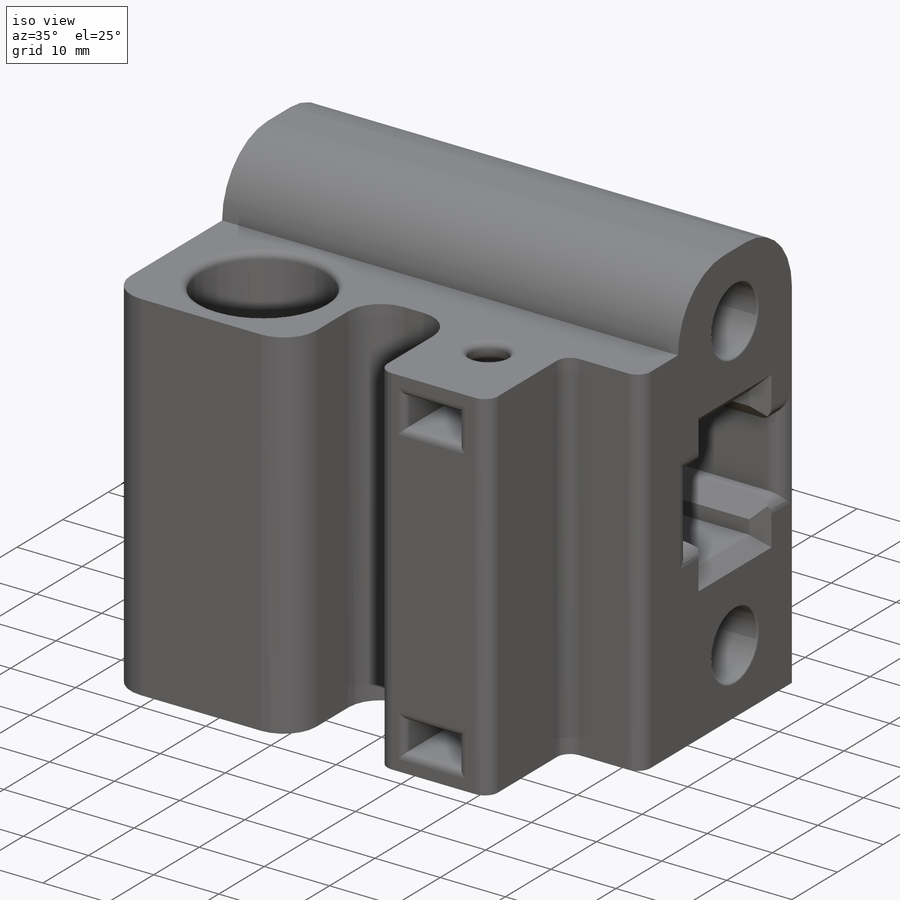
[diagram: iso view]
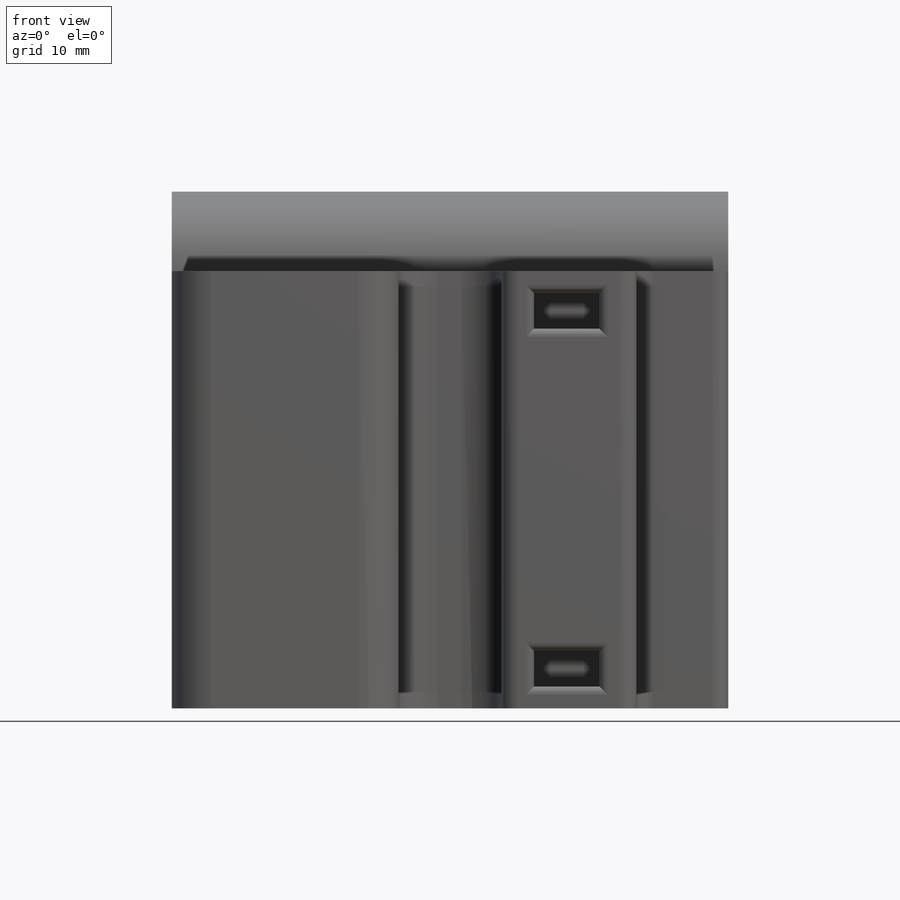
[diagram: front view]
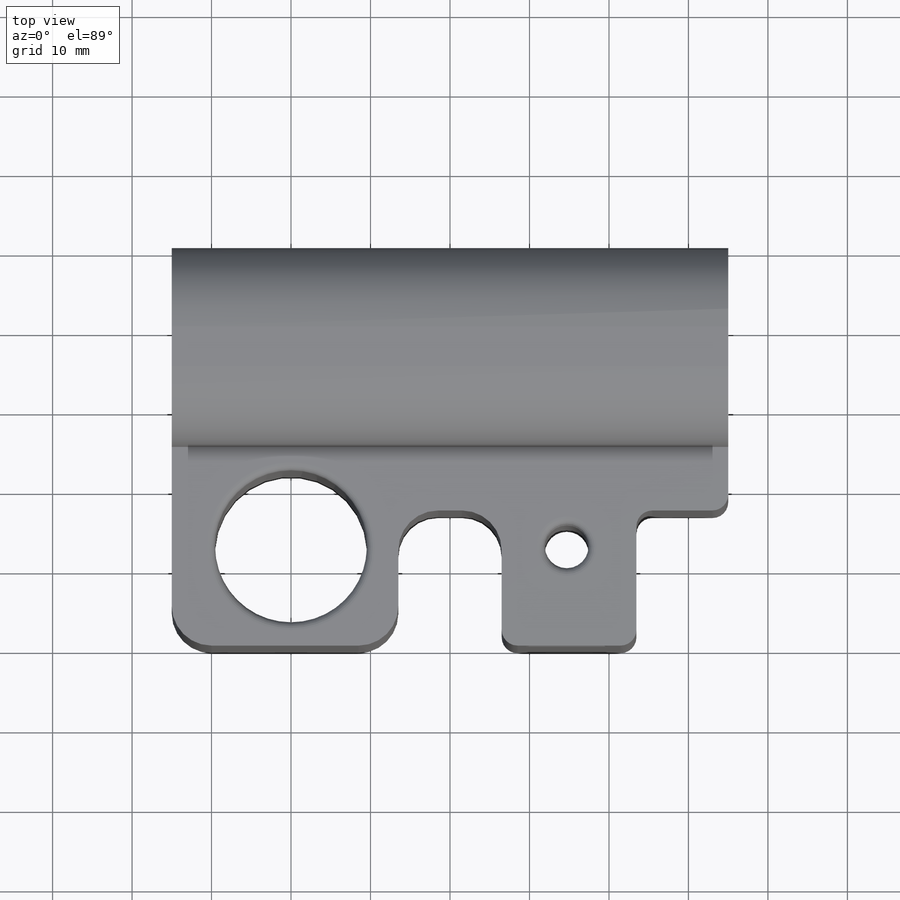
[diagram: top view]
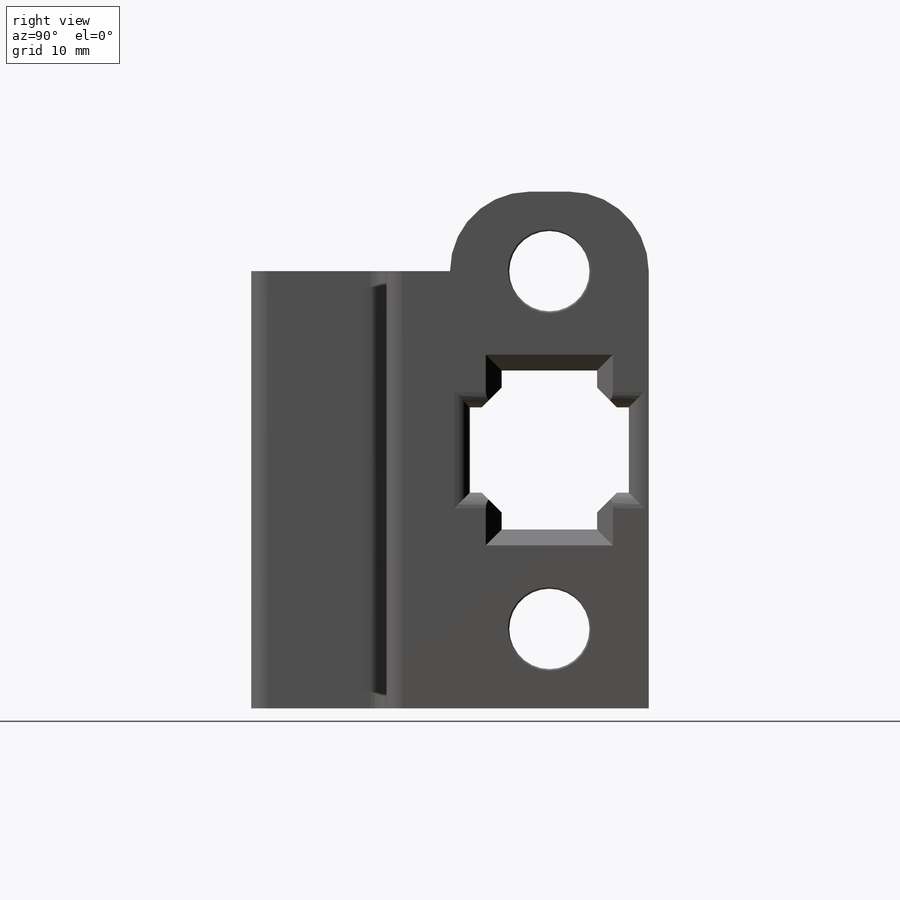
[diagram: right view]
SOLIDWORKS PART (.sldprt)
format: sldprt  version: not decoded by parser v0  size: 650,240 bytes
history: native  units: mm
features: fillet x12, sketch x11, cut_extrude x10, chamfer x2, material x1, extrude x1 (+13 scaffold rows collapsed)
feature tree (50):
  scaffold x13  (default folders/planes/origin — collapsed)
  material  "Material <not specified>"
  sketch  "Sketch1"  dims[D1=65.0mm D2=70.0mm]
  extrude  "Boss-Extrude1"  Depth=50mm
  sketch  "Sketch2"
  cut_extrude  "Cut-Extrude1"  Depth=10mm
  sketch  "Sketch3"  dims[D1=5.5mm D2=19.1mm D3=20.32mm D4=34.68mm D5=12.5mm]
  cut_extrude  "Cut-Extrude2"  [1 undecoded]
  sketch  "Sketch4"  dims[c1.D1=10.1mm c1.D2=10.1mm c1.D5=10.1mm c1.D3=45.0mm c1.D4=22.5mm c2.D5=10.0mm]
  cut_extrude  "Cut-Extrude3"  [1 undecoded]
  sketch  "Sketch5"  dims[D1=20.0mm D2=12.0mm]
  cut_extrude  "Cut-Extrude4"  [1 undecoded]
  sketch  "Sketch6"  dims[D1=25.0mm D2=30.0mm D3=20.0mm]
  cut_extrude  "Cut-Extrude5"  Depth=2.5mm
  fillet  "Fillet1"  Radius=10mm
  chamfer  "Chamfer1"  Distance=2mm Angle=45deg
  fillet  "Fillet3"  Radius=0.25mm
  fillet  "Fillet4"  Radius=1mm
  sketch  "Sketch8"  dims[D1=20.32mm D2=5.0mm D3=8.25mm D4=4.5mm]
  cut_extrude  "Cut-Extrude6"  Depth=17.5mm
  sketch  "Sketch9"
  cut_extrude  "Cut-Extrude7"  Depth=1mm
  sketch  "Sketch12"  dims[D2=5.0mm D1=17.0mm D3=13.0mm]
  cut_extrude  "Cut-Extrude8"  [1 undecoded]
  sketch  "Sketch13"
  cut_extrude  "Cut-Extrude10"  Depth=17mm
  fillet  "Fillet5"  Radius=2mm
  fillet  "Fillet6"  Radius=5mm
  sketch  "Sketch14"
  cut_extrude  "Cut-Extrude11"  [1 undecoded]
  chamfer  "Chamfer2"  Distance=2.5mm Angle=45deg
  fillet  "Fillet8"  Radius=2mm
  fillet  "Fillet9"  Radius=2mm
  fillet  "Fillet10"  Radius=1mm
  fillet  "Fillet11"  Radius=1mm
  fillet  "Fillet12"  Radius=1mm
  fillet  "Fillet13"  Radius=1mm
  fillet  "Fillet14"  Radius=1mm
decode coverage: 27 of 36 modeling features carry decoded parameters
note: 5 parameter values undecoded
summary: no parameter record found for 5 features
note: suppression state not decoded; provenance and decode notes live in map.json
